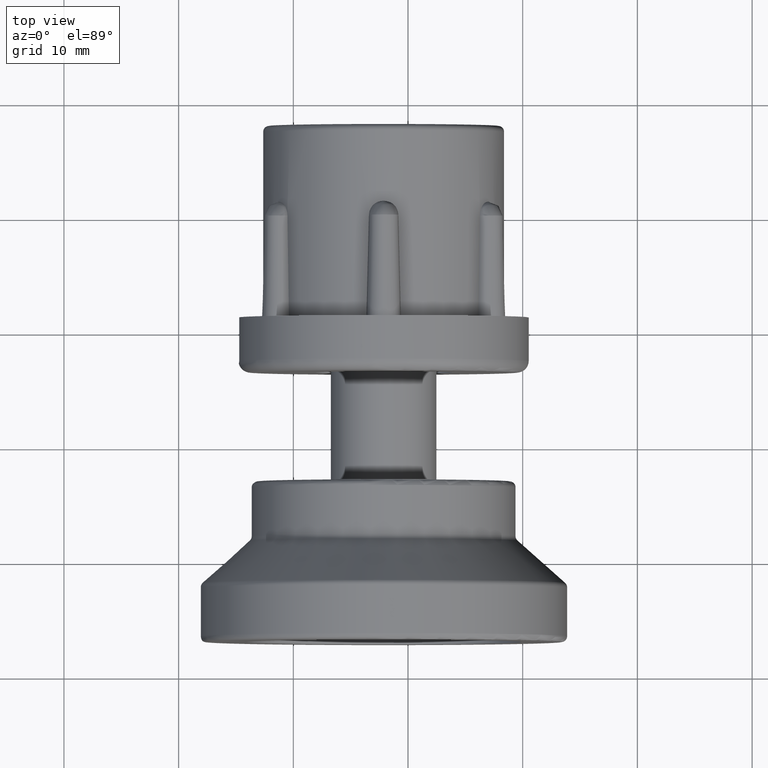
[diagram: clean part render]
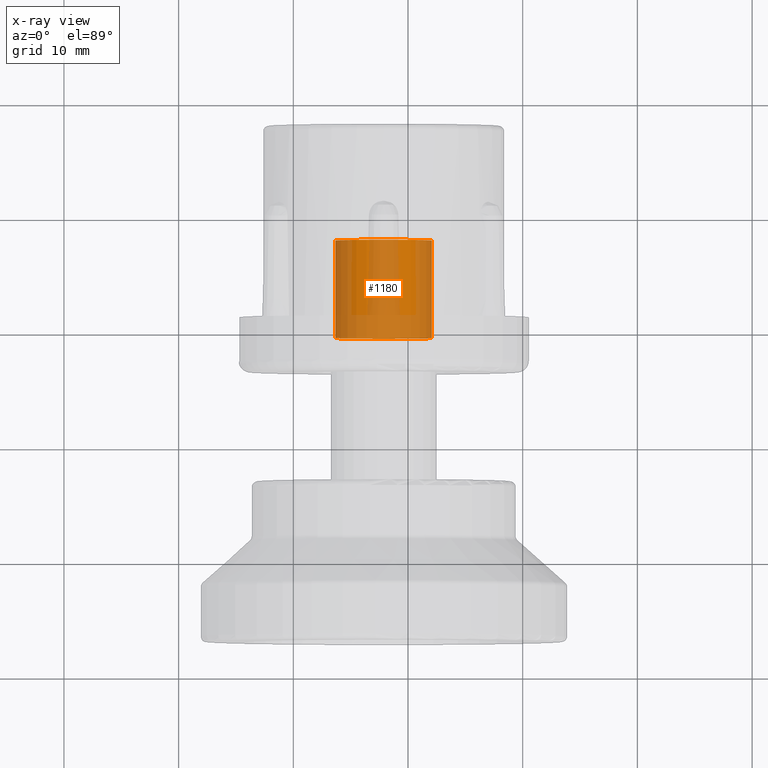
[diagram: x-ray — body ghosted, one internal face saturated and labeled with its STEP entity id]
A machine part, top view, then the same camera in x-ray: the body is ghosted and one INTERNAL B-rep face — a face not visible from any outside direction — is saturated and labeled: STEP entity #1180.
In plain terms, the highlighted cylindrical surface (bore or boss wall) has radius 4.191 mm, axis along (0, -1, 0).
Its self-contained STEP definition (entity closure, byte-faithful):
#62=FACE_BOUND('',#361,.T.);
#143=CIRCLE('',#1330,4.191);
#144=CIRCLE('',#1331,4.191);
#260=FACE_OUTER_BOUND('',#360,.T.);
#360=EDGE_LOOP('',(#1059));
#361=EDGE_LOOP('',(#1060));
#603=VERTEX_POINT('',#2463);
#604=VERTEX_POINT('',#2465);
#762=EDGE_CURVE('',#603,#603,#143,.T.);
#763=EDGE_CURVE('',#604,#604,#144,.T.);
#1059=ORIENTED_EDGE('',*,*,#762,.F.);
#1060=ORIENTED_EDGE('',*,*,#763,.F.);
#1106=CYLINDRICAL_SURFACE('',#1329,4.191);
#1180=ADVANCED_FACE('',(#260,#62),#1106,.F.);
#1329=AXIS2_PLACEMENT_3D('',#2462,#1664,#1665);
#1330=AXIS2_PLACEMENT_3D('',#2464,#1666,#1667);
#1331=AXIS2_PLACEMENT_3D('',#2466,#1668,#1669);
#1664=DIRECTION('center_axis',(0.,-1.,0.));
#1665=DIRECTION('ref_axis',(1.,0.,0.));
#1666=DIRECTION('center_axis',(0.,-1.,0.));
#1667=DIRECTION('ref_axis',(1.,0.,0.));
#1668=DIRECTION('center_axis',(0.,1.,0.));
#1669=DIRECTION('ref_axis',(1.,0.,0.));
#2462=CARTESIAN_POINT('Origin',(-2.22044604925031E-15,15.171,0.));
#2463=CARTESIAN_POINT('',(-4.191,11.5,-5.13249473522656E-16));
#2464=CARTESIAN_POINT('Origin',(-2.22044604925031E-15,11.5,0.));
#2465=CARTESIAN_POINT('',(4.191,3.,0.));
#2466=CARTESIAN_POINT('Origin',(-2.22044604925031E-15,3.,0.));